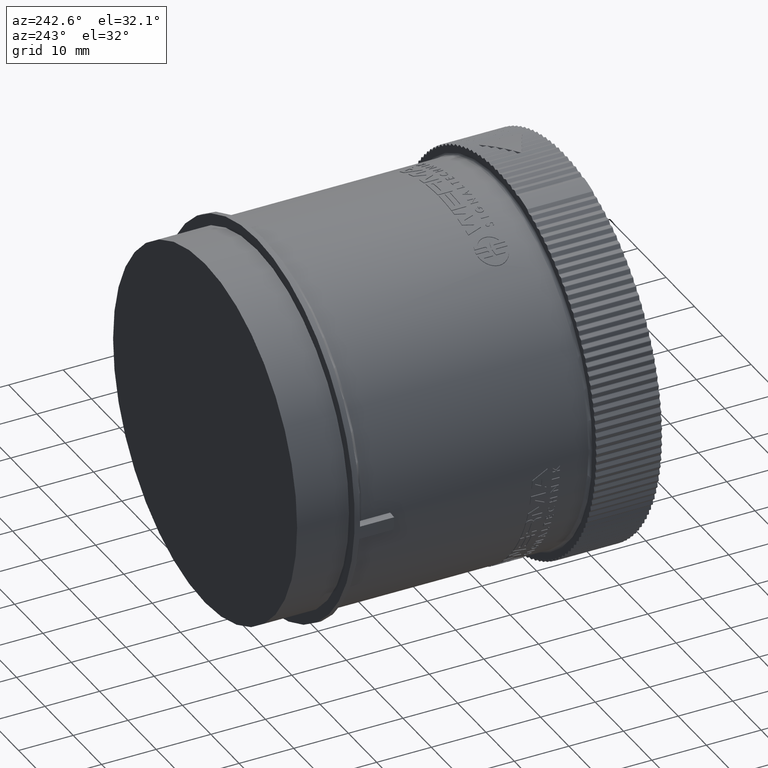
[diagram: clean part render]
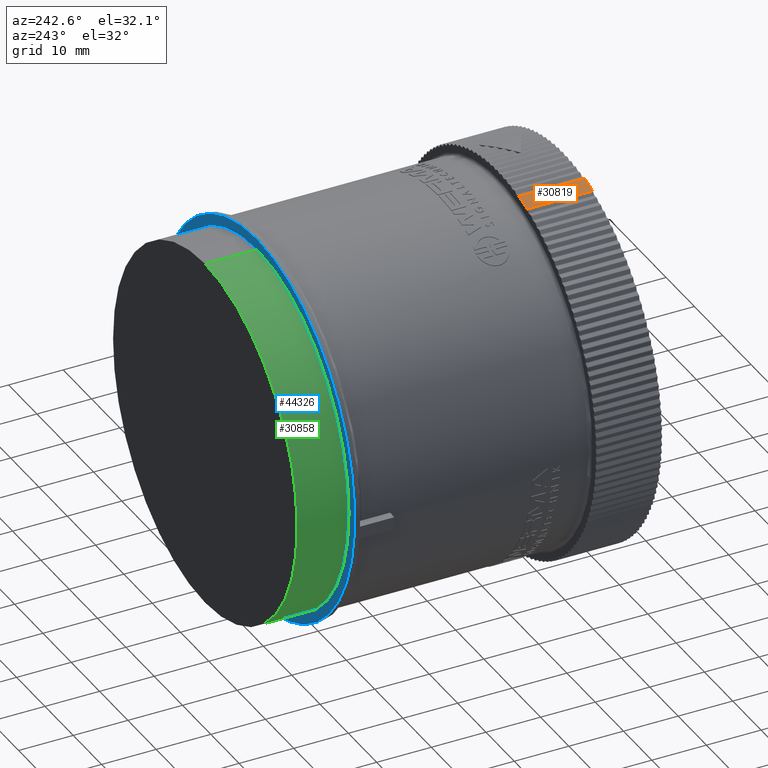
[diagram: same view with three faces highlighted in distinct colors, each labeled with its STEP entity id]
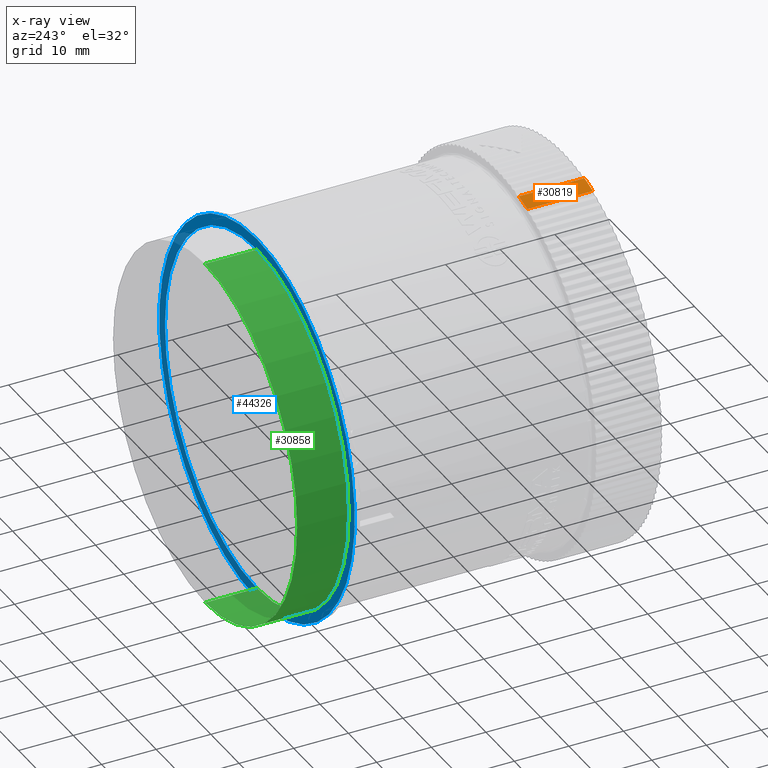
[diagram: x-ray of the same camera — body ghosted, the three highlighted faces saturated]
A machine part, auxiliary view with three faces highlighted in distinct colors.
The next image is the same camera in x-ray (body ghosted, the three faces saturated) — at least one of them is partly hidden behind the body in this view.
Their STEP definitions:

[orange] entity #30819 — the highlighted cylindrical surface (partial cylindrical patch) has radius 35.075 mm, axis along (0, 1, 0).
#823 = CYLINDRICAL_SURFACE ( 'NONE', #46685, 1.380905511811023800 ) ;
#3579 = CARTESIAN_POINT ( 'NONE',  ( -0.2988826558613764100, 0.0000000000000000000, 1.348172537391010500 ) ) ;
#5763 = CARTESIAN_POINT ( 'NONE',  ( -0.4152462959689923200, 0.4724409448818899200, 1.316992993995829100 ) ) ;
#8072 = ORIENTED_EDGE ( 'NONE', *, *, #10349, .T. ) ;
#8623 = AXIS2_PLACEMENT_3D ( 'NONE', #17570, #44802, #21536 ) ;
#10349 = EDGE_CURVE ( 'NONE', #26639, #30269, #20363, .T. ) ;
#10889 = CARTESIAN_POINT ( 'NONE',  ( -0.4152462959689923700, 0.0000000000000000000, 1.316992993995828700 ) ) ;
#11692 = EDGE_CURVE ( 'NONE', #27717, #25638, #32430, .T. ) ;
#13722 = DIRECTION ( 'NONE',  ( 0.0000000000000000000, 1.000000000000000000, 0.0000000000000000000 ) ) ;
#17570 = CARTESIAN_POINT ( 'NONE',  ( 0.0000000000000000000, 0.4724409448818899200, 0.0000000000000000000 ) ) ;
#18381 = EDGE_LOOP ( 'NONE', ( #50105, #8072, #33042, #20800 ) ) ;
#18405 = CIRCLE ( 'NONE', #8623, 1.380905511811023800 ) ;
#19138 = CARTESIAN_POINT ( 'NONE',  ( 0.0000000000000000000, 0.0000000000000000000, 0.0000000000000000000 ) ) ;
#20363 = LINE ( 'NONE', #35482, #50143 ) ;
#20800 = ORIENTED_EDGE ( 'NONE', *, *, #11692, .T. ) ;
#21536 = DIRECTION ( 'NONE',  ( 0.0000000000000000000, 0.0000000000000000000, 1.000000000000000000 ) ) ;
#22606 = CARTESIAN_POINT ( 'NONE',  ( -0.2988826558613764100, 0.4724409448818899200, 1.348172537391010500 ) ) ;
#24152 = EDGE_CURVE ( 'NONE', #25638, #26639, #34904, .T. ) ;
#25420 = CARTESIAN_POINT ( 'NONE',  ( -0.4152462959689923200, 0.0000000000000000000, 1.316992993995829100 ) ) ;
#25638 = VERTEX_POINT ( 'NONE', #25420 ) ;
#26639 = VERTEX_POINT ( 'NONE', #3579 ) ;
#27717 = VERTEX_POINT ( 'NONE', #5763 ) ;
#30269 = VERTEX_POINT ( 'NONE', #22606 ) ;
#30819 = ADVANCED_FACE ( 'NONE', ( #42158 ), #823, .T. ) ;
#32430 = LINE ( 'NONE', #10889, #41558 ) ;
#33042 = ORIENTED_EDGE ( 'NONE', *, *, #49214, .F. ) ;
#33762 = AXIS2_PLACEMENT_3D ( 'NONE', #37071, #13722, #40968 ) ;
#34904 = CIRCLE ( 'NONE', #33762, 1.380905511811023800 ) ;
#35482 = CARTESIAN_POINT ( 'NONE',  ( -0.2988826558613763600, 0.0000000000000000000, 1.348172537391010500 ) ) ;
#37071 = CARTESIAN_POINT ( 'NONE',  ( 0.0000000000000000000, 0.0000000000000000000, 0.0000000000000000000 ) ) ;
#38733 = DIRECTION ( 'NONE',  ( 0.0000000000000000000, 0.0000000000000000000, 1.000000000000000000 ) ) ;
#40968 = DIRECTION ( 'NONE',  ( 0.0000000000000000000, 0.0000000000000000000, 1.000000000000000000 ) ) ;
#41558 = VECTOR ( 'NONE', #42036, 39.37007874015748100 ) ;
#42036 = DIRECTION ( 'NONE',  ( -0.0000000000000000000, -1.000000000000000000, -0.0000000000000000000 ) ) ;
#42158 = FACE_OUTER_BOUND ( 'NONE', #18381, .T. ) ;
#42440 = DIRECTION ( 'NONE',  ( 0.0000000000000000000, 1.000000000000000000, 0.0000000000000000000 ) ) ;
#43262 = DIRECTION ( 'NONE',  ( 0.0000000000000000000, 1.000000000000000000, 0.0000000000000000000 ) ) ;
#44802 = DIRECTION ( 'NONE',  ( 0.0000000000000000000, 1.000000000000000000, 0.0000000000000000000 ) ) ;
#46685 = AXIS2_PLACEMENT_3D ( 'NONE', #19138, #42440, #38733 ) ;
#49214 = EDGE_CURVE ( 'NONE', #27717, #30269, #18405, .T. ) ;
#50105 = ORIENTED_EDGE ( 'NONE', *, *, #24152, .T. ) ;
#50143 = VECTOR ( 'NONE', #43262, 39.37007874015748100 ) ;

[blue] entity #44326 — the highlighted planar face has unit normal (0, 1, 0).
#313 = PLANE ( 'NONE',  #9189 ) ;
#833 = EDGE_CURVE ( 'NONE', #5291, #23348, #49723, .T. ) ;
#3549 = FACE_BOUND ( 'NONE', #12906, .T. ) ;
#4824 = EDGE_CURVE ( 'NONE', #25361, #47241, #42634, .T. ) ;
#5291 = VERTEX_POINT ( 'NONE', #44694 ) ;
#7731 = DIRECTION ( 'NONE',  ( 0.0000000000000000000, -1.000000000000000000, 0.0000000000000000000 ) ) ;
#8753 = ORIENTED_EDGE ( 'NONE', *, *, #4824, .T. ) ;
#8902 = CIRCLE ( 'NONE', #18300, 1.358267716535433300 ) ;
#9189 = AXIS2_PLACEMENT_3D ( 'NONE', #27468, #39217, #15864 ) ;
#9392 = DIRECTION ( 'NONE',  ( 0.0000000000000000000, -1.000000000000000000, 0.0000000000000000000 ) ) ;
#11431 = ORIENTED_EDGE ( 'NONE', *, *, #833, .F. ) ;
#11761 = CARTESIAN_POINT ( 'NONE',  ( 0.0000000000000000000, 2.204724409448819400, 0.0000000000000000000 ) ) ;
#11794 = CARTESIAN_POINT ( 'NONE',  ( 0.0000000000000000000, 2.204724409448819400, 0.0000000000000000000 ) ) ;
#12906 = EDGE_LOOP ( 'NONE', ( #46913, #8753 ) ) ;
#15320 = CARTESIAN_POINT ( 'NONE',  ( 0.0000000000000000000, 2.204724409448819400, -1.358267716535433300 ) ) ;
#15658 = DIRECTION ( 'NONE',  ( 0.0000000000000000000, 0.0000000000000000000, -1.000000000000000000 ) ) ;
#15682 = DIRECTION ( 'NONE',  ( 0.0000000000000000000, 0.0000000000000000000, -1.000000000000000000 ) ) ;
#15864 = DIRECTION ( 'NONE',  ( 0.0000000000000000000, -0.0000000000000000000, 1.000000000000000000 ) ) ;
#18300 = AXIS2_PLACEMENT_3D ( 'NONE', #31020, #7731, #34956 ) ;
#18480 = CIRCLE ( 'NONE', #45920, 1.279527559055118300 ) ;
#21121 = EDGE_CURVE ( 'NONE', #23348, #5291, #8902, .T. ) ;
#23348 = VERTEX_POINT ( 'NONE', #15320 ) ;
#24668 = AXIS2_PLACEMENT_3D ( 'NONE', #32705, #9392, #36614 ) ;
#25361 = VERTEX_POINT ( 'NONE', #34854 ) ;
#27468 = CARTESIAN_POINT ( 'NONE',  ( 1.318897637795275700, 2.204724409448819400, 0.0000000000000000000 ) ) ;
#31020 = CARTESIAN_POINT ( 'NONE',  ( 0.0000000000000000000, 2.204724409448819400, 0.0000000000000000000 ) ) ;
#31140 = AXIS2_PLACEMENT_3D ( 'NONE', #11794, #39034, #15682 ) ;
#32705 = CARTESIAN_POINT ( 'NONE',  ( 0.0000000000000000000, 2.204724409448819400, 0.0000000000000000000 ) ) ;
#34854 = CARTESIAN_POINT ( 'NONE',  ( 1.566969329617676700E-016, 2.204724409448819400, 1.279527559055118300 ) ) ;
#34956 = DIRECTION ( 'NONE',  ( 0.0000000000000000000, 0.0000000000000000000, -1.000000000000000000 ) ) ;
#36614 = DIRECTION ( 'NONE',  ( 0.0000000000000000000, 0.0000000000000000000, -1.000000000000000000 ) ) ;
#39001 = DIRECTION ( 'NONE',  ( 0.0000000000000000000, -1.000000000000000000, 0.0000000000000000000 ) ) ;
#39034 = DIRECTION ( 'NONE',  ( 0.0000000000000000000, -1.000000000000000000, 0.0000000000000000000 ) ) ;
#39217 = DIRECTION ( 'NONE',  ( 0.0000000000000000000, 1.000000000000000000, 0.0000000000000000000 ) ) ;
#41596 = EDGE_CURVE ( 'NONE', #47241, #25361, #18480, .T. ) ;
#42634 = CIRCLE ( 'NONE', #31140, 1.279527559055118300 ) ;
#43899 = EDGE_LOOP ( 'NONE', ( #47530, #11431 ) ) ;
#44326 = ADVANCED_FACE ( 'NONE', ( #3549, #44859 ), #313, .T. ) ;
#44694 = CARTESIAN_POINT ( 'NONE',  ( 1.663398211440302800E-016, 2.204724409448819400, 1.358267716535433300 ) ) ;
#44856 = CARTESIAN_POINT ( 'NONE',  ( 0.0000000000000000000, 2.204724409448819400, -1.279527559055118300 ) ) ;
#44859 = FACE_OUTER_BOUND ( 'NONE', #43899, .T. ) ;
#45920 = AXIS2_PLACEMENT_3D ( 'NONE', #11761, #39001, #15658 ) ;
#46913 = ORIENTED_EDGE ( 'NONE', *, *, #41596, .T. ) ;
#47241 = VERTEX_POINT ( 'NONE', #44856 ) ;
#47530 = ORIENTED_EDGE ( 'NONE', *, *, #21121, .F. ) ;
#49723 = CIRCLE ( 'NONE', #24668, 1.358267716535433300 ) ;

[green] entity #30858 — the highlighted cylindrical surface (partial cylindrical patch) has radius 32.5 mm, axis along (0, -1, 0).
#139 = CARTESIAN_POINT ( 'NONE',  ( 0.0000000000000000000, 2.391732283464567600, 0.0000000000000000000 ) ) ;
#920 = VECTOR ( 'NONE', #7381, 39.37007874015748100 ) ;
#2322 = CARTESIAN_POINT ( 'NONE',  ( 1.566969329617676700E-016, 2.578740157480315300, 1.279527559055118300 ) ) ;
#3507 = CARTESIAN_POINT ( 'NONE',  ( 0.0000000000000000000, 2.391732283464567600, -1.279527559055118300 ) ) ;
#4051 = DIRECTION ( 'NONE',  ( 0.0000000000000000000, -1.000000000000000000, 0.0000000000000000000 ) ) ;
#4824 = EDGE_CURVE ( 'NONE', #25361, #47241, #42634, .T. ) ;
#6666 = AXIS2_PLACEMENT_3D ( 'NONE', #139, #4051, #15366 ) ;
#7000 = CARTESIAN_POINT ( 'NONE',  ( 0.0000000000000000000, 2.578740157480315300, -1.279527559055118300 ) ) ;
#7381 = DIRECTION ( 'NONE',  ( 0.0000000000000000000, -1.000000000000000000, 0.0000000000000000000 ) ) ;
#10661 = EDGE_CURVE ( 'NONE', #43011, #14398, #30101, .T. ) ;
#11770 = ORIENTED_EDGE ( 'NONE', *, *, #10661, .T. ) ;
#11794 = CARTESIAN_POINT ( 'NONE',  ( 0.0000000000000000000, 2.204724409448819400, 0.0000000000000000000 ) ) ;
#13345 = AXIS2_PLACEMENT_3D ( 'NONE', #41386, #18048, #45273 ) ;
#14398 = VERTEX_POINT ( 'NONE', #7000 ) ;
#15366 = DIRECTION ( 'NONE',  ( 0.0000000000000000000, 0.0000000000000000000, -1.000000000000000000 ) ) ;
#15682 = DIRECTION ( 'NONE',  ( 0.0000000000000000000, 0.0000000000000000000, -1.000000000000000000 ) ) ;
#18048 = DIRECTION ( 'NONE',  ( 0.0000000000000000000, -1.000000000000000000, 0.0000000000000000000 ) ) ;
#21468 = FACE_OUTER_BOUND ( 'NONE', #31407, .T. ) ;
#23333 = EDGE_CURVE ( 'NONE', #14398, #47241, #31907, .T. ) ;
#25361 = VERTEX_POINT ( 'NONE', #34854 ) ;
#29396 = CYLINDRICAL_SURFACE ( 'NONE', #6666, 1.279527559055118300 ) ;
#29801 = CARTESIAN_POINT ( 'NONE',  ( 1.566969329617676700E-016, 2.391732283464567600, 1.279527559055118300 ) ) ;
#30101 = CIRCLE ( 'NONE', #13345, 1.279527559055118300 ) ;
#30858 = ADVANCED_FACE ( 'NONE', ( #21468 ), #29396, .T. ) ;
#31140 = AXIS2_PLACEMENT_3D ( 'NONE', #11794, #39034, #15682 ) ;
#31407 = EDGE_LOOP ( 'NONE', ( #41712, #11770, #32551, #50044 ) ) ;
#31907 = LINE ( 'NONE', #3507, #920 ) ;
#32551 = ORIENTED_EDGE ( 'NONE', *, *, #23333, .T. ) ;
#34854 = CARTESIAN_POINT ( 'NONE',  ( 1.566969329617676700E-016, 2.204724409448819400, 1.279527559055118300 ) ) ;
#35070 = EDGE_CURVE ( 'NONE', #43011, #25361, #43833, .T. ) ;
#39034 = DIRECTION ( 'NONE',  ( 0.0000000000000000000, -1.000000000000000000, 0.0000000000000000000 ) ) ;
#41386 = CARTESIAN_POINT ( 'NONE',  ( 0.0000000000000000000, 2.578740157480315300, 0.0000000000000000000 ) ) ;
#41712 = ORIENTED_EDGE ( 'NONE', *, *, #35070, .F. ) ;
#42622 = VECTOR ( 'NONE', #49316, 39.37007874015748100 ) ;
#42634 = CIRCLE ( 'NONE', #31140, 1.279527559055118300 ) ;
#43011 = VERTEX_POINT ( 'NONE', #2322 ) ;
#43833 = LINE ( 'NONE', #29801, #42622 ) ;
#44856 = CARTESIAN_POINT ( 'NONE',  ( 0.0000000000000000000, 2.204724409448819400, -1.279527559055118300 ) ) ;
#45273 = DIRECTION ( 'NONE',  ( 0.0000000000000000000, 0.0000000000000000000, -1.000000000000000000 ) ) ;
#47241 = VERTEX_POINT ( 'NONE', #44856 ) ;
#49316 = DIRECTION ( 'NONE',  ( 0.0000000000000000000, -1.000000000000000000, 0.0000000000000000000 ) ) ;
#50044 = ORIENTED_EDGE ( 'NONE', *, *, #4824, .F. ) ;